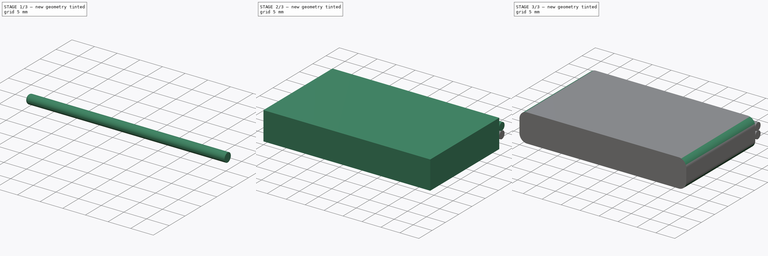
[diagram: build sequence overview — one tinted view per stage of 3, left to right]
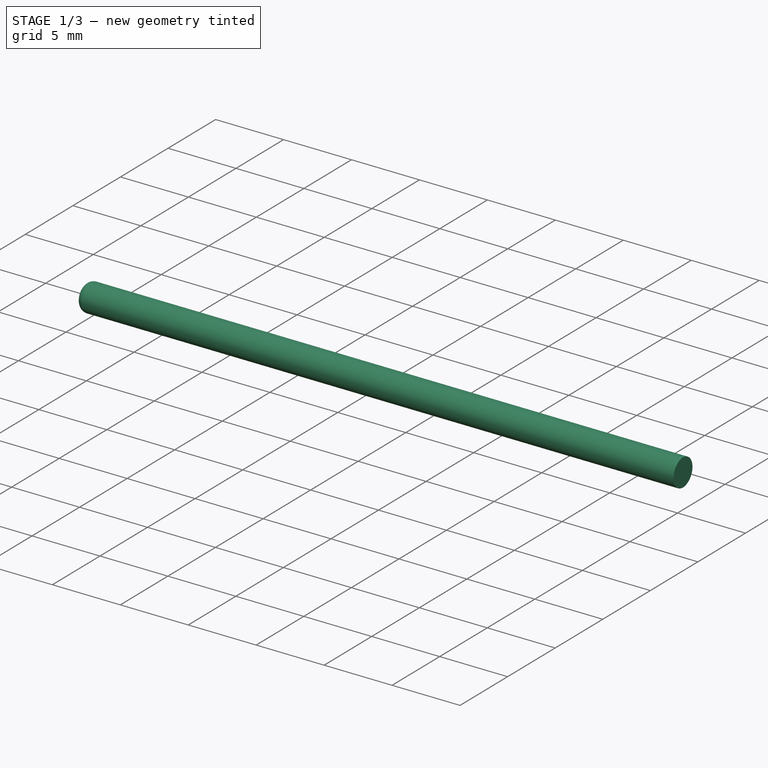
[diagram: stage 1 of 3 — iso view after this stage's code; geometry added in this stage tinted green]
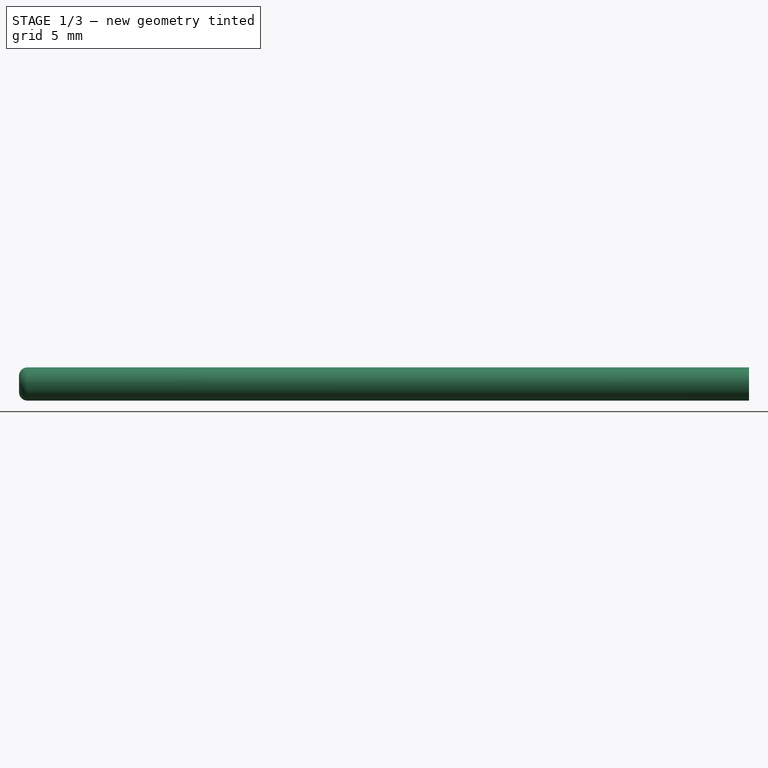
[diagram: stage 1 of 3 — front view after this stage's code; geometry added in this stage tinted green]
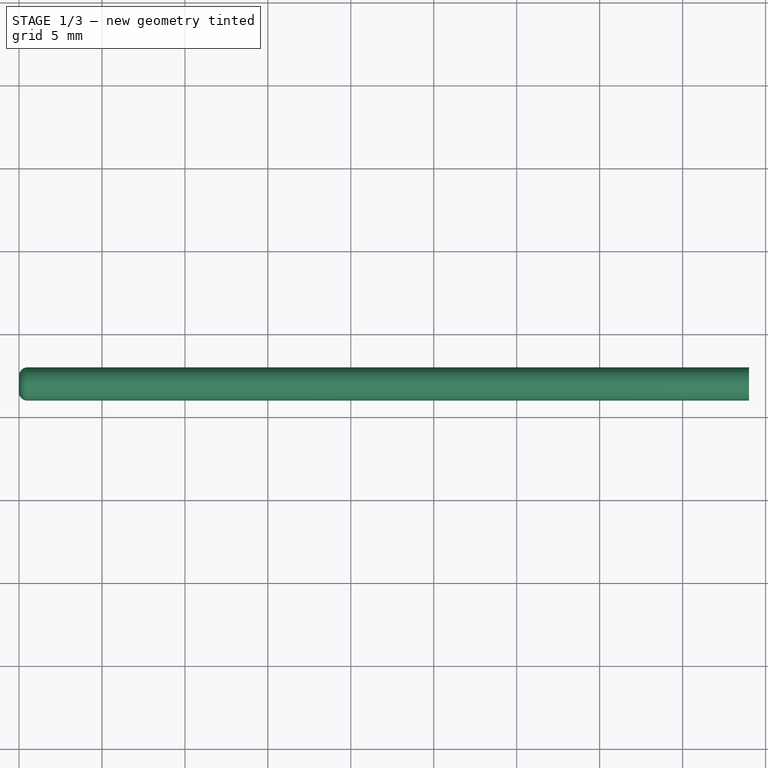
[diagram: stage 1 of 3 — top view after this stage's code; geometry added in this stage tinted green]
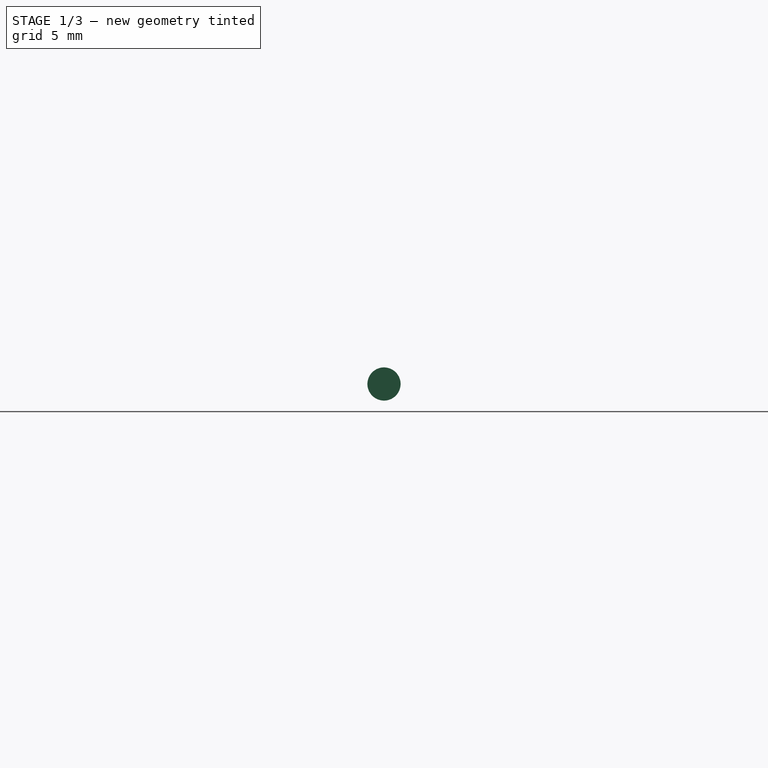
[diagram: stage 1 of 3 — right view after this stage's code; geometry added in this stage tinted green]
FCSTD DOCUMENT  (FreeCAD 0.16R6597 (Git))
Label: lipo_tenergy_500mAh
License: All rights reserved
LicenseURL: http://en.wikipedia.org/wiki/All_rights_reserved
objects: PartDesign::Fillet×4, Part::Cylinder×2, Sketcher::SketchObject×1, PartDesign::Pad×1
note: 9 computed .brp shape members not serialized (recipe doc carries the construction recipe); baked Part::Feature solids carry a one-line shape summary decoded from their .brp

FEATURE [Part::Cylinder] Cylinder001
  Angle = 360
  Height = 44
  Placement = pos=(0,27,3) rot=(0,1,0;1.5708rad)
  Radius = 1
FEATURE [PartDesign::Fillet] Fillet003
  Base = -> Cylinder001 [Edge3]
  Placement = pos=(0,27,3) rot=(0,1,0;1.5708rad)
  Radius = 0.5
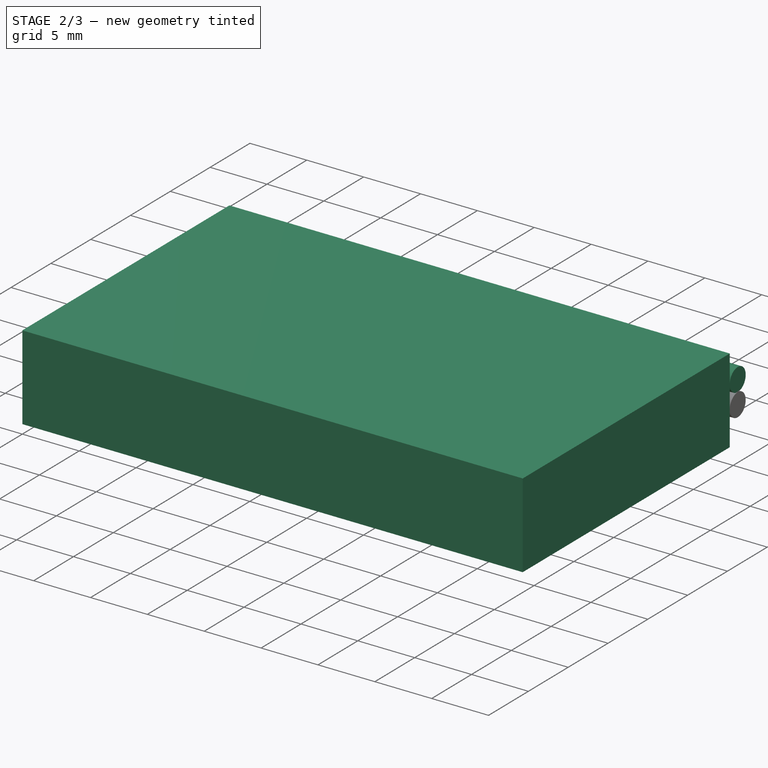
[diagram: stage 2 of 3 — iso view after this stage's code; geometry added in this stage tinted green]
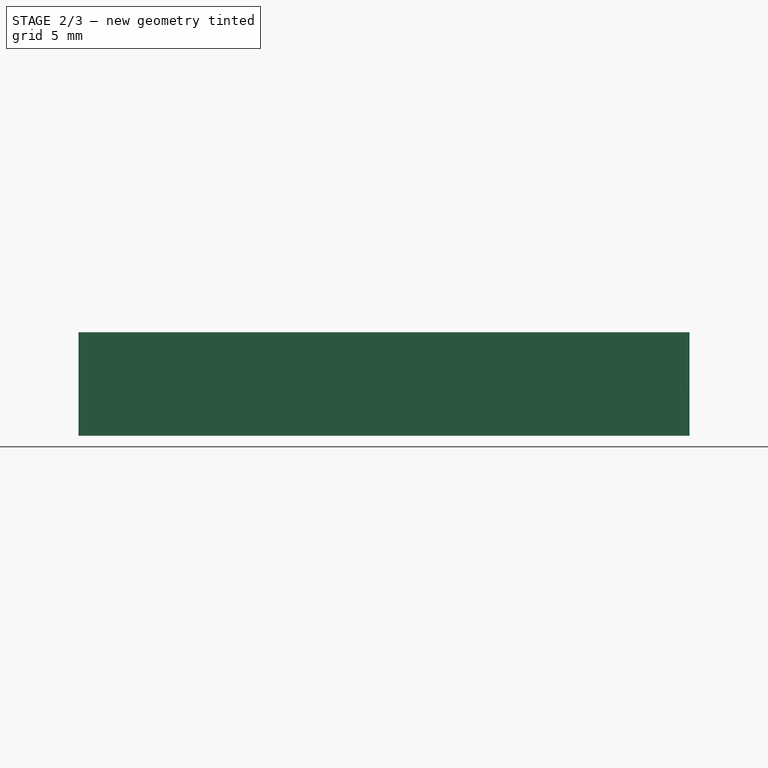
[diagram: stage 2 of 3 — front view after this stage's code; geometry added in this stage tinted green]
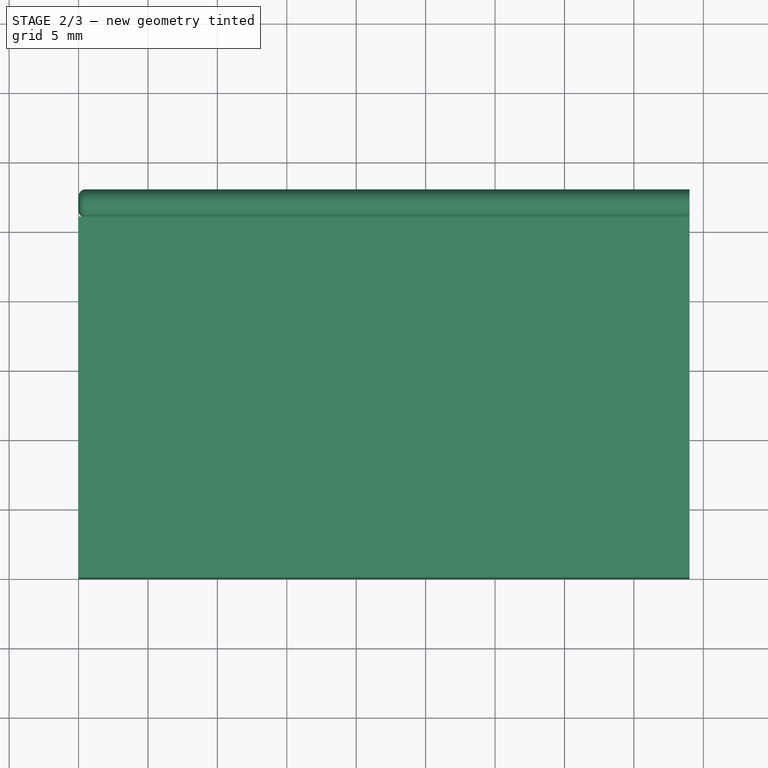
[diagram: stage 2 of 3 — top view after this stage's code; geometry added in this stage tinted green]
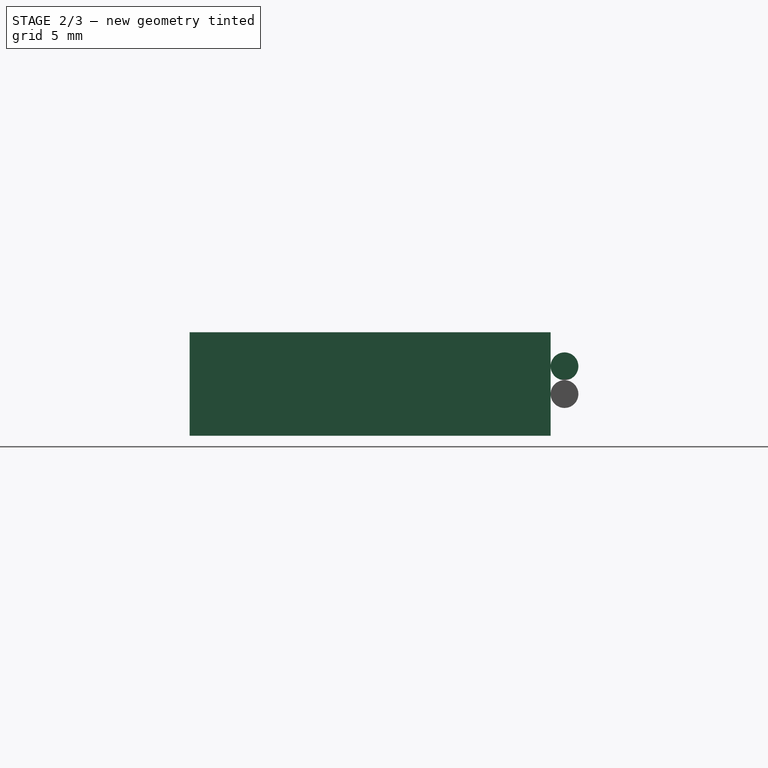
[diagram: stage 2 of 3 — right view after this stage's code; geometry added in this stage tinted green]
FEATURE [Sketcher::SketchObject] Sketch
  sketch-geometry (4):
    g0: LineSegment StartX=0 StartY=0 StartZ=0 EndX=44 EndY=0 EndZ=0
    g1: LineSegment StartX=44 StartY=0 StartZ=0 EndX=44 EndY=26 EndZ=0
    g2: LineSegment StartX=44 StartY=26 StartZ=0 EndX=0 EndY=26 EndZ=0
    g3: LineSegment StartX=0 StartY=26 StartZ=0 EndX=0 EndY=0 EndZ=0
  constraints (11):
    c: Coincident(g0,g1)
    c: Coincident(g1,g2)
    c: Coincident(g2,g3)
    c: Coincident(g3,g0)
    c: Horizontal(g0)
    c: Horizontal(g2)
    c: Vertical(g1)
    c: Vertical(g3)
    c: Coincident(g0,g-1)
    c: DistanceY(g1) = 26
    c: DistanceX(g2) = -44
FEATURE [PartDesign::Pad] Pad
  Length = 7.45
  Length2 = 100
  Sketch = -> Sketch
  Type = 0
FEATURE [Part::Cylinder] Cylinder
  Angle = 360
  Height = 44
  Placement = pos=(0,27,5) rot=(0,1,0;1.5708rad)
  Radius = 1
FEATURE [PartDesign::Fillet] Fillet002
  Base = -> Cylinder [Edge3]
  Placement = pos=(0,27,5) rot=(0,1,0;1.5708rad)
  Radius = 0.5
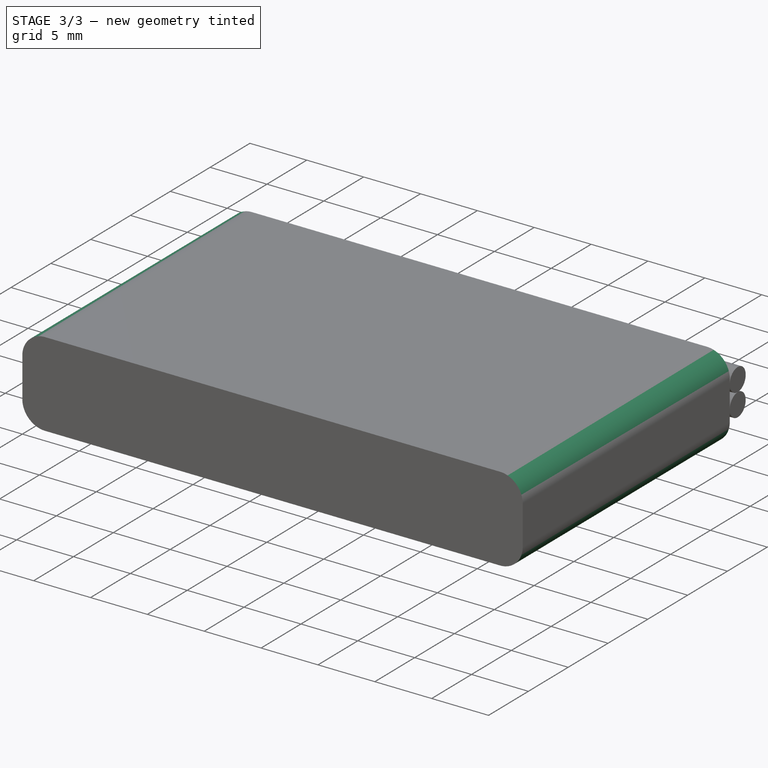
[diagram: stage 3 of 3 — iso view after this stage's code; geometry added in this stage tinted green]
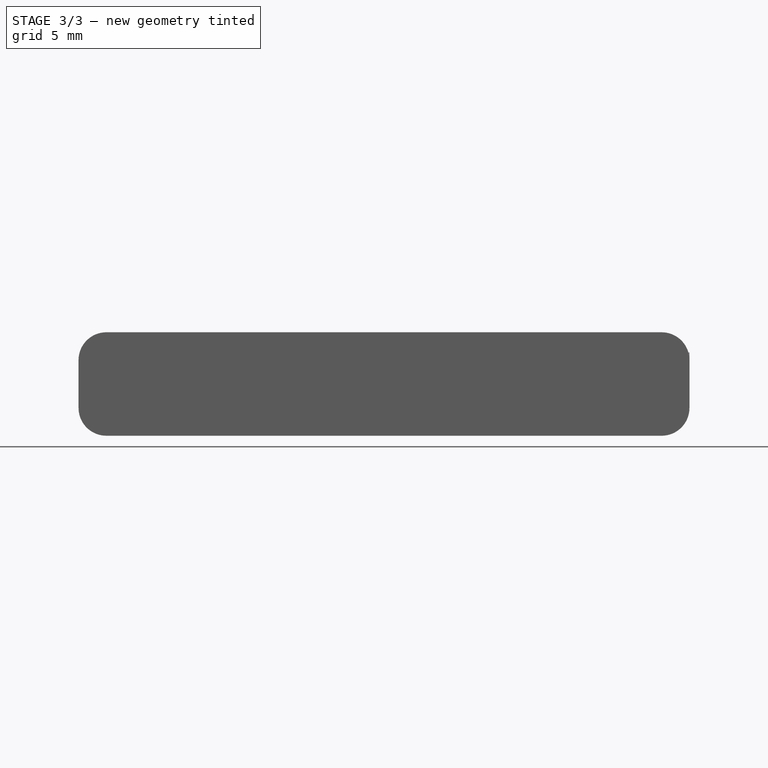
[diagram: stage 3 of 3 — front view after this stage's code; geometry added in this stage tinted green]
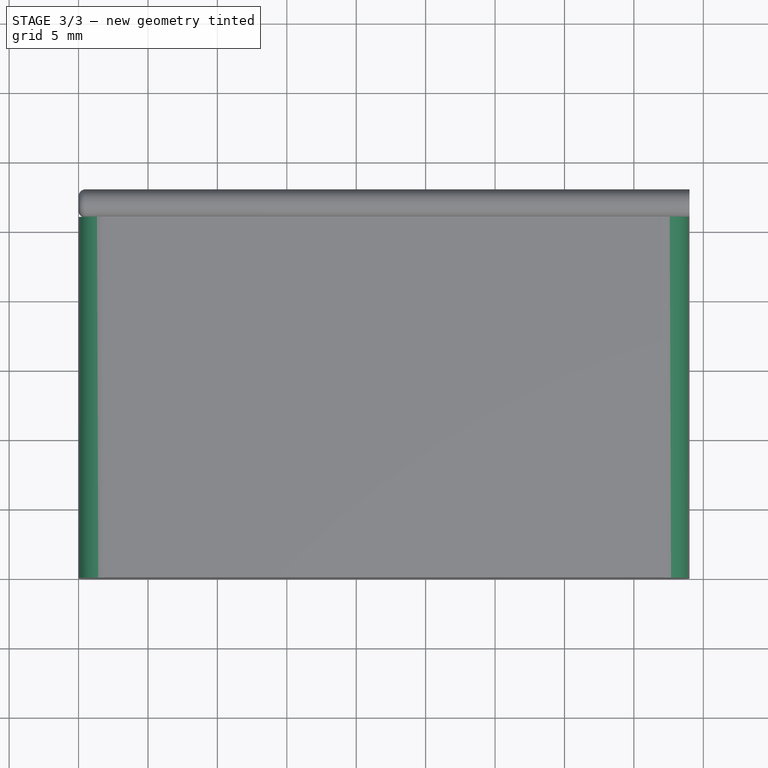
[diagram: stage 3 of 3 — top view after this stage's code; geometry added in this stage tinted green]
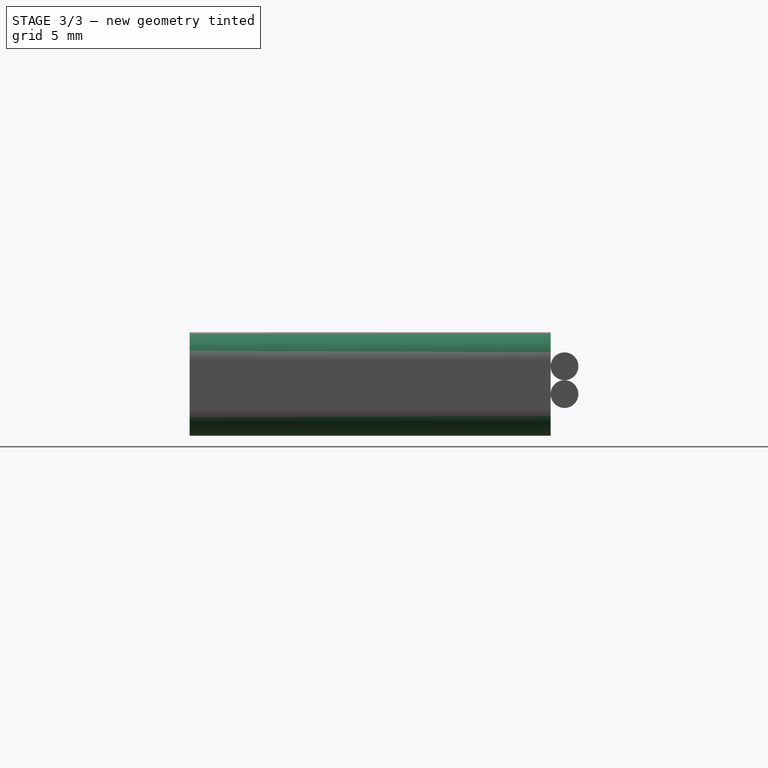
[diagram: stage 3 of 3 — right view after this stage's code; geometry added in this stage tinted green]
FEATURE [PartDesign::Fillet] Fillet
  Base = -> Pad [Edge6,Edge7]
  Radius = 2
FEATURE [PartDesign::Fillet] Fillet001
  Base = -> Fillet [Edge16,Edge14]
  Radius = 2
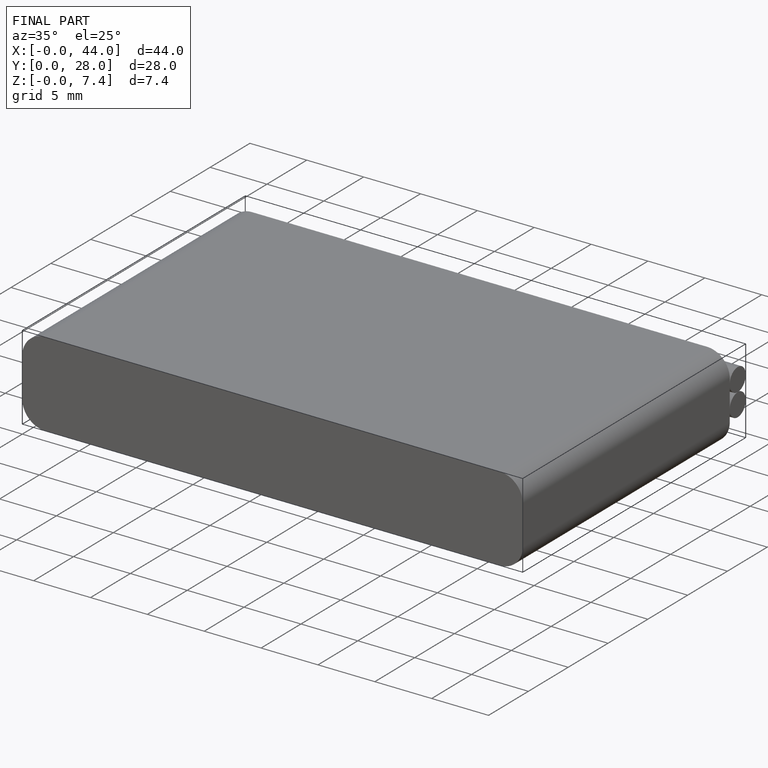
[diagram: finished part — iso view with bounding-box wireframe]
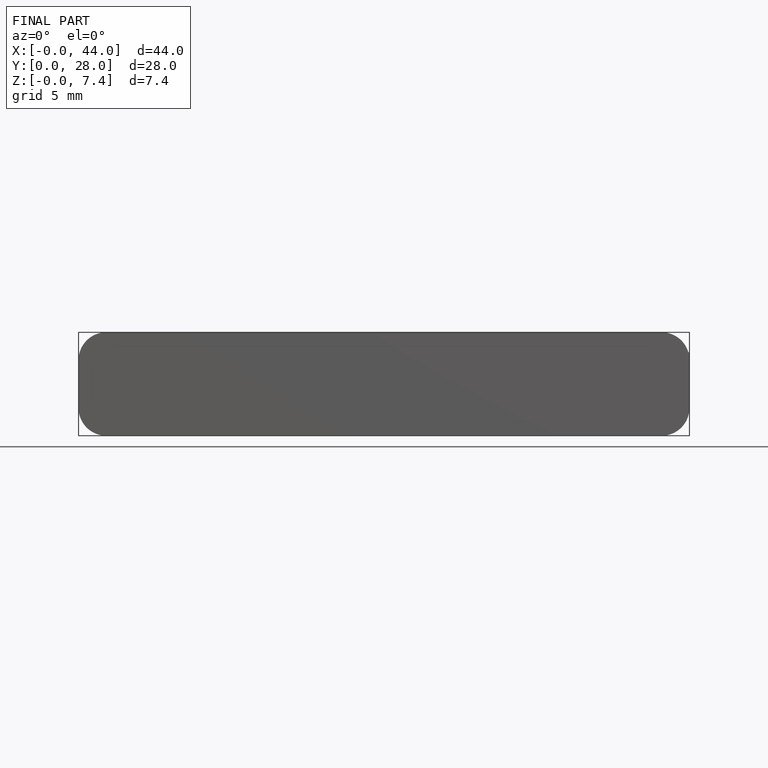
[diagram: finished part — front view with bounding-box wireframe]
